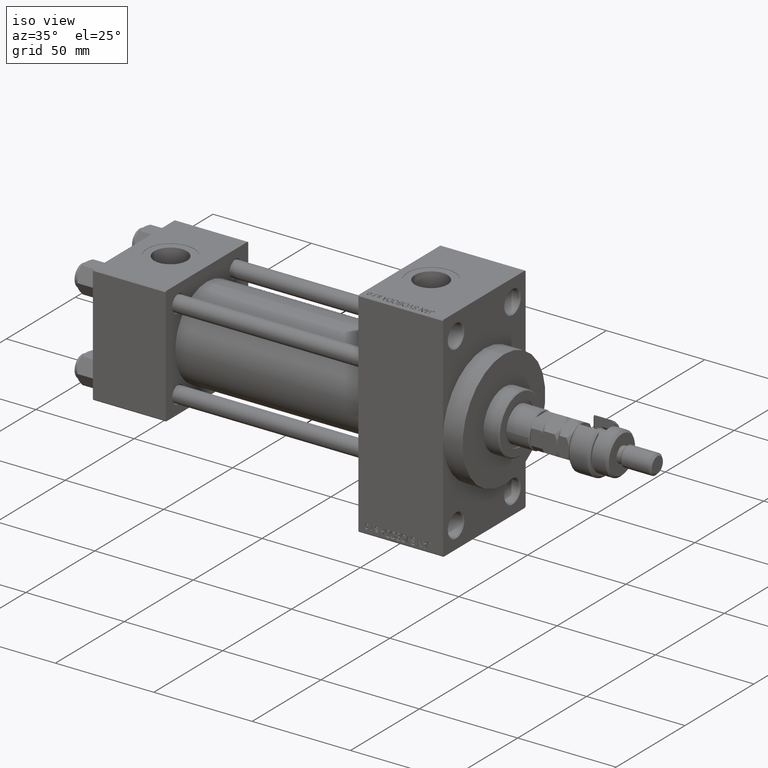
[diagram: clean part render]
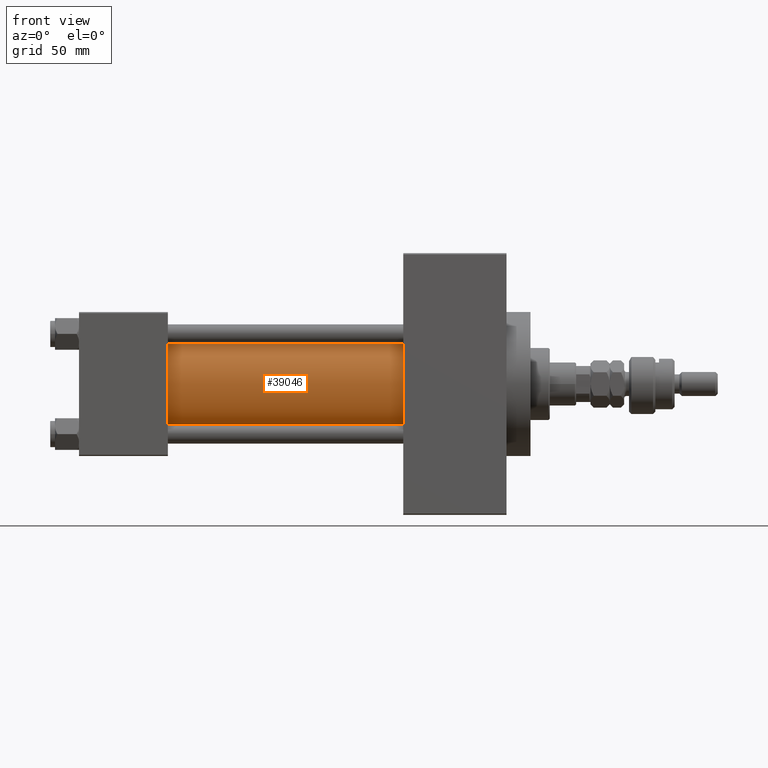
[diagram: tour spotlight — one face highlighted and labeled with its STEP entity id]
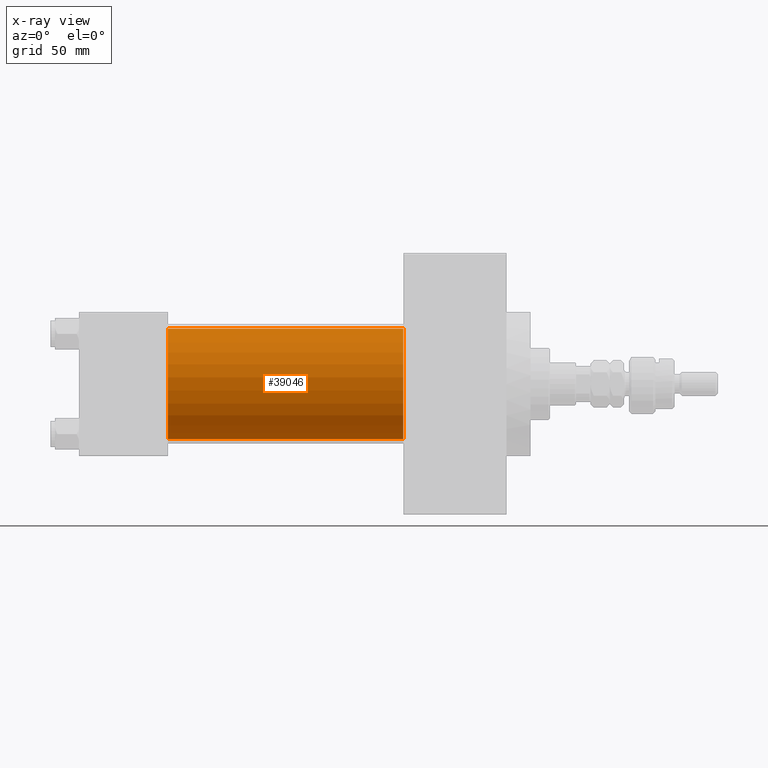
[diagram: x-ray of the same camera — body ghosted, this tour face saturated]
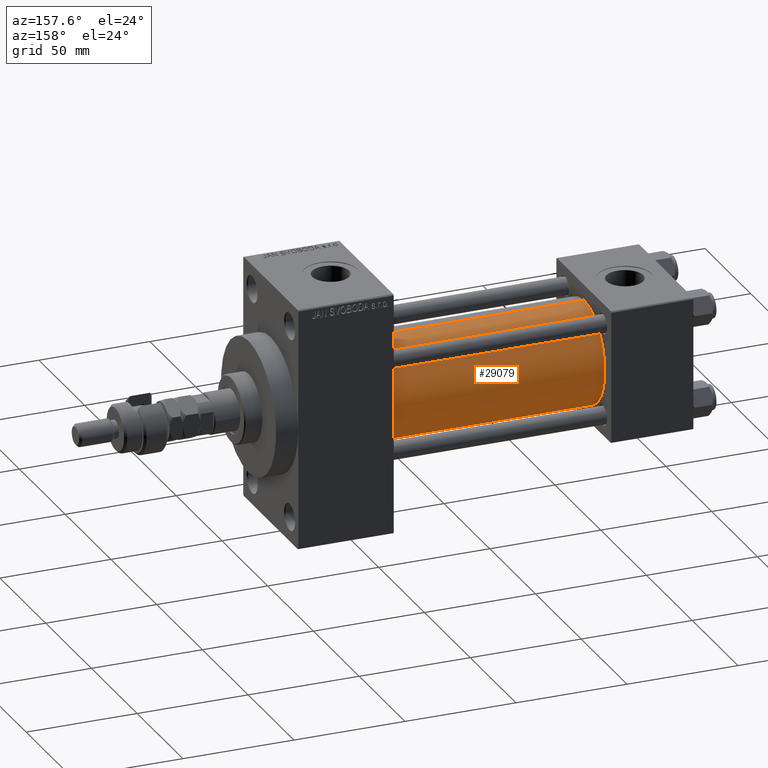
[diagram: tour spotlight — one face highlighted and labeled with its STEP entity id]
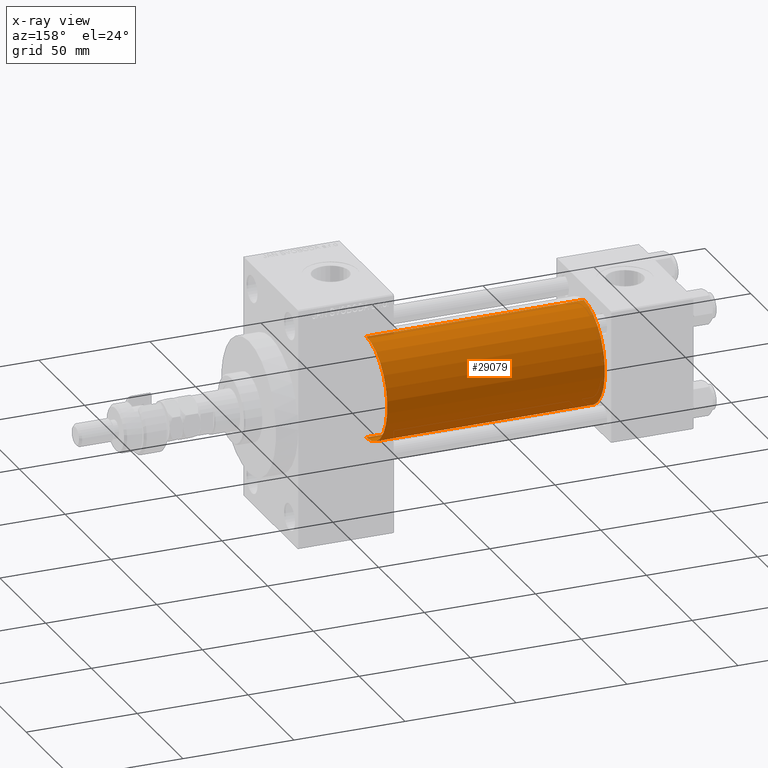
[diagram: x-ray of the same camera — body ghosted, this tour face saturated]
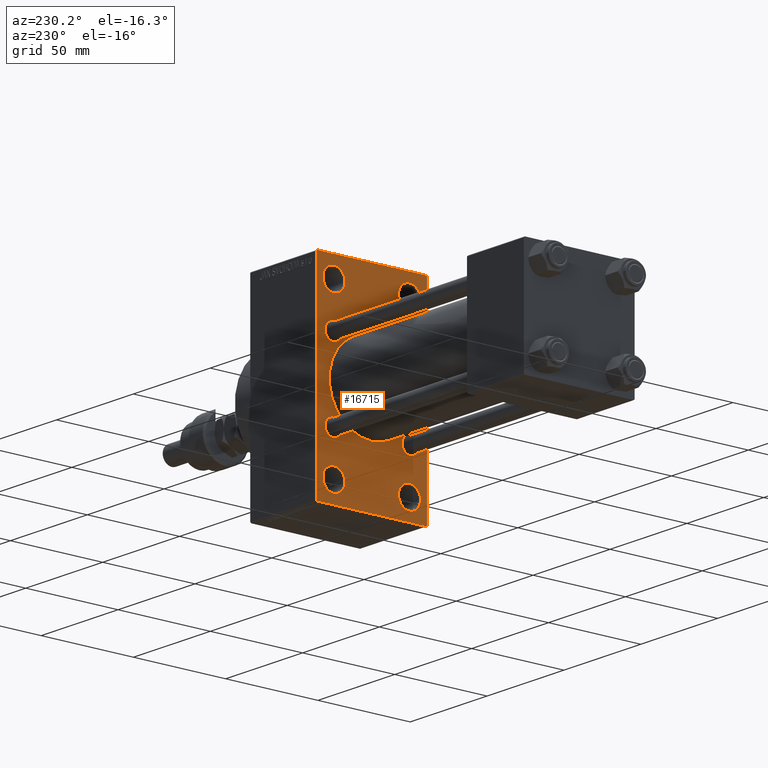
[diagram: tour spotlight — one face highlighted and labeled with its STEP entity id]
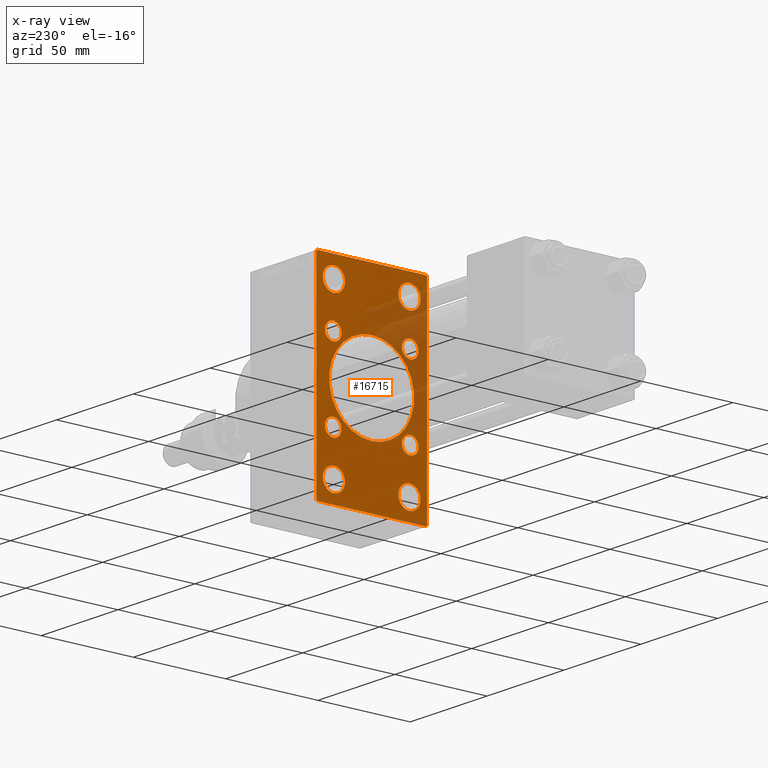
[diagram: x-ray of the same camera — body ghosted, this tour face saturated]
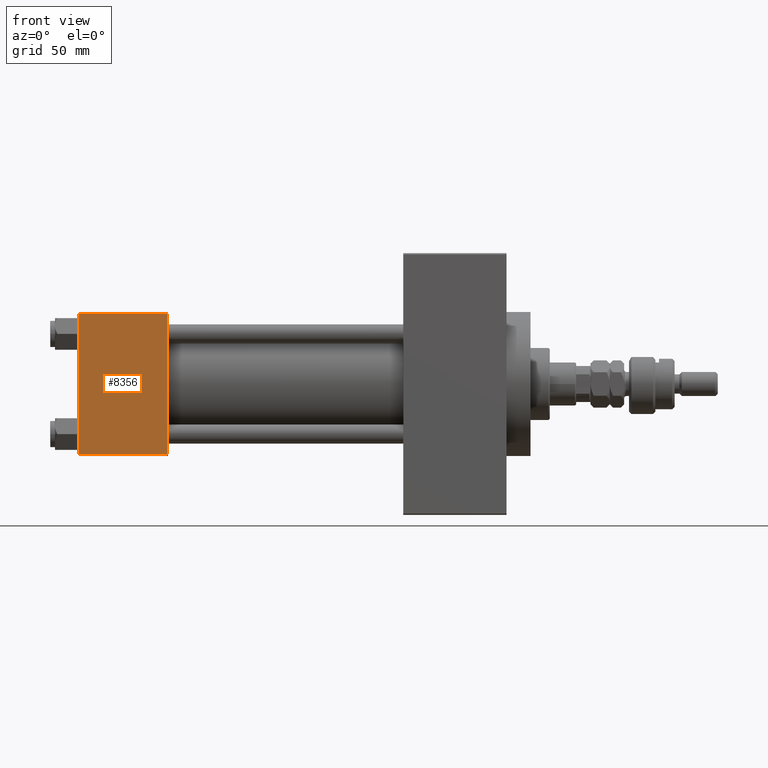
[diagram: tour spotlight — one face highlighted and labeled with its STEP entity id]
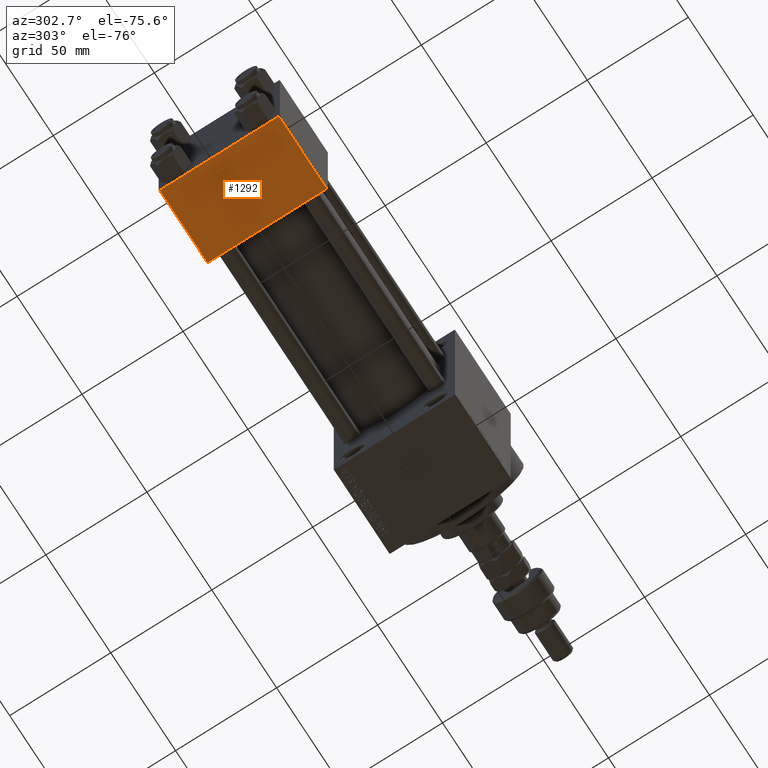
[diagram: tour spotlight — one face highlighted and labeled with its STEP entity id]
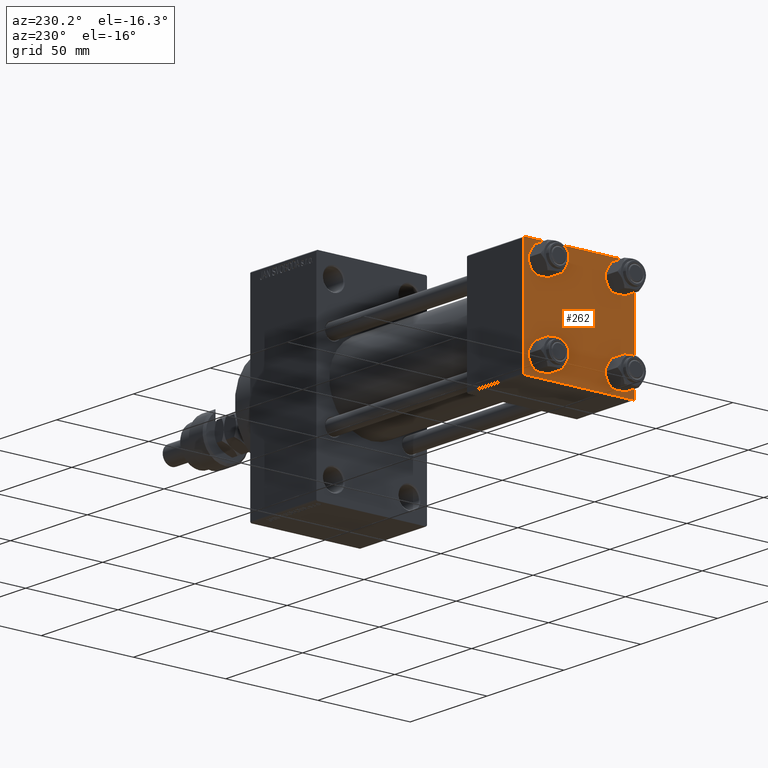
[diagram: tour spotlight — one face highlighted and labeled with its STEP entity id]
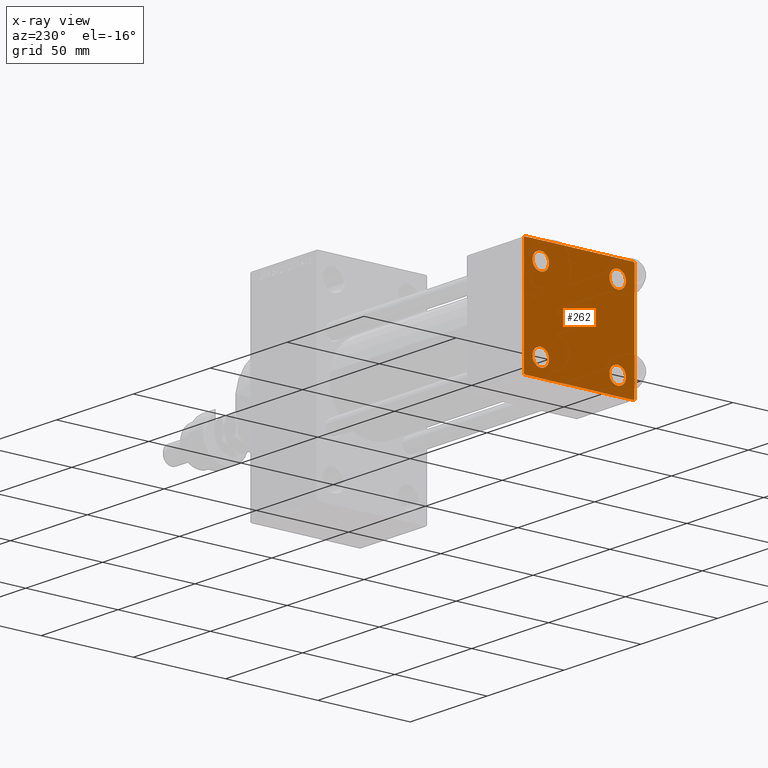
[diagram: x-ray of the same camera — body ghosted, this tour face saturated]
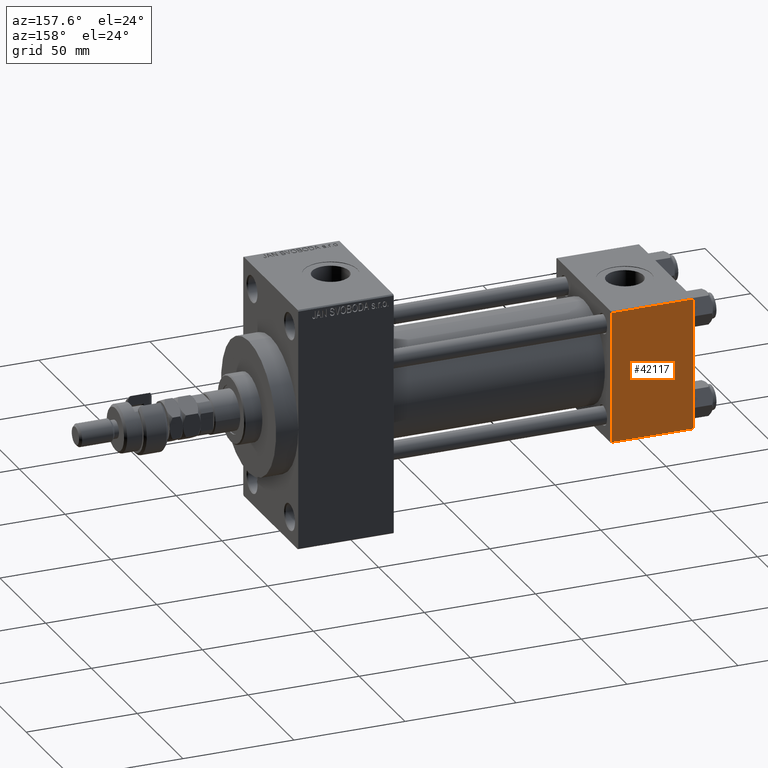
[diagram: tour spotlight — one face highlighted and labeled with its STEP entity id]
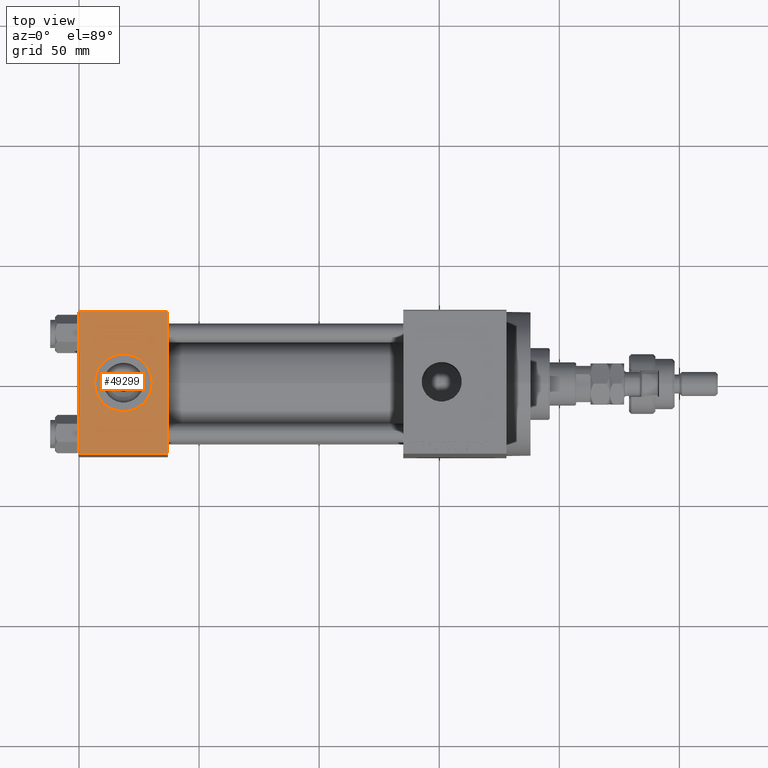
[diagram: tour spotlight — one face highlighted and labeled with its STEP entity id]
A machine part: a face-by-face anatomy tour. The part has 1189 B-rep faces; the first image is the clean iso view, then the 8 largest visible faces are spotlighted one at a time (largest first), each with its STEP entity span.

Face 1 — front view, entity #39046. An x-ray twin of the same camera follows (body ghosted, this face saturated) — the face is partly hidden behind the body. In plain terms, the highlighted cylindrical surface (partial cylindrical patch) has radius 23 mm, axis along (-1, -0, -0).
Definition (entity closure, byte-faithful):
#1125 = DIRECTION ( 'NONE',  ( -1.000000000000000000, -0.000000000000000000, -0.000000000000000000 ) ) ;
#2136 = CARTESIAN_POINT ( 'NONE',  ( 135.0000000000000000, 2.146024240737016609E-16, -23.00000000000000000 ) ) ;
#2287 = EDGE_LOOP ( 'NONE', ( #4867, #3840, #40761, #14083 ) ) ;
#3840 = ORIENTED_EDGE ( 'NONE', *, *, #43823, .F. ) ;
#4451 = VERTEX_POINT ( 'NONE', #14945 ) ;
#4867 = ORIENTED_EDGE ( 'NONE', *, *, #23606, .F. ) ;
#5389 = CARTESIAN_POINT ( 'NONE',  ( 37.00000000000000711, 2.146024240737016609E-16, -23.00000000000000000 ) ) ;
#7955 = DIRECTION ( 'NONE',  ( 0.000000000000000000, 0.000000000000000000, 1.000000000000000000 ) ) ;
#10046 = DIRECTION ( 'NONE',  ( 1.000000000000000000, -0.000000000000000000, 0.000000000000000000 ) ) ;
#10247 = DIRECTION ( 'NONE',  ( 1.000000000000000000, 0.000000000000000000, 0.000000000000000000 ) ) ;
#12777 = FACE_OUTER_BOUND ( 'NONE', #2287, .T. ) ;
#14083 = ORIENTED_EDGE ( 'NONE', *, *, #49857, .T. ) ;
#14945 = CARTESIAN_POINT ( 'NONE',  ( 135.0000000000000000, 2.146024240737016609E-16, -23.00000000000000000 ) ) ;
#15545 = DIRECTION ( 'NONE',  ( -1.000000000000000000, -0.000000000000000000, -0.000000000000000000 ) ) ;
#17026 = CIRCLE ( 'NONE', #23468, 23.00000000000000000 ) ;
#18569 = DIRECTION ( 'NONE',  ( -1.000000000000000000, -0.000000000000000000, -0.000000000000000000 ) ) ;
#20039 = CIRCLE ( 'NONE', #37822, 23.00000000000000000 ) ;
#23468 = AXIS2_PLACEMENT_3D ( 'NONE', #29222, #10247, #33266 ) ;
#23606 = EDGE_CURVE ( 'NONE', #4451, #25965, #36781, .T. ) ;
#24582 = VERTEX_POINT ( 'NONE', #41395 ) ;
#25965 = VERTEX_POINT ( 'NONE', #5389 ) ;
#29222 = CARTESIAN_POINT ( 'NONE',  ( 135.0000000000000000, -2.602085213965210642E-15, 0.000000000000000000 ) ) ;
#29234 = LINE ( 'NONE', #33763, #41300 ) ;
#30975 = CARTESIAN_POINT ( 'NONE',  ( 135.0000000000000000, -2.602085213965210642E-15, 0.000000000000000000 ) ) ;
#33266 = DIRECTION ( 'NONE',  ( 0.000000000000000000, 0.000000000000000000, -1.000000000000000000 ) ) ;
#33310 = DIRECTION ( 'NONE',  ( 0.000000000000000000, 0.000000000000000000, 1.000000000000000000 ) ) ;
#33763 = CARTESIAN_POINT ( 'NONE',  ( 135.0000000000000000, -2.602085213965210642E-15, 23.00000000000000000 ) ) ;
#36781 = LINE ( 'NONE', #2136, #47110 ) ;
#37822 = AXIS2_PLACEMENT_3D ( 'NONE', #44448, #10046, #33310 ) ;
#37829 = AXIS2_PLACEMENT_3D ( 'NONE', #30975, #1125, #7955 ) ;
#38308 = VERTEX_POINT ( 'NONE', #46094 ) ;
#39046 = ADVANCED_FACE ( 'NONE', ( #12777 ), #42612, .T. ) ;
#40761 = ORIENTED_EDGE ( 'NONE', *, *, #44863, .T. ) ;
#41300 = VECTOR ( 'NONE', #15545, 1000.000000000000000 ) ;
#41395 = CARTESIAN_POINT ( 'NONE',  ( 135.0000000000000000, -2.602085213965210642E-15, 23.00000000000000000 ) ) ;
#42612 = CYLINDRICAL_SURFACE ( 'NONE', #37829, 23.00000000000000000 ) ;
#43823 = EDGE_CURVE ( 'NONE', #24582, #4451, #17026, .T. ) ;
#44448 = CARTESIAN_POINT ( 'NONE',  ( 37.00000000000000711, -2.602085213965210642E-15, 0.000000000000000000 ) ) ;
#44863 = EDGE_CURVE ( 'NONE', #24582, #38308, #29234, .T. ) ;
#46094 = CARTESIAN_POINT ( 'NONE',  ( 37.00000000000000711, -2.602085213965210642E-15, 23.00000000000000000 ) ) ;
#47110 = VECTOR ( 'NONE', #18569, 1000.000000000000000 ) ;
#49857 = EDGE_CURVE ( 'NONE', #38308, #25965, #20039, .T. ) ;

Face 2 — auxiliary view, entity #29079. An x-ray twin of the same camera follows (body ghosted, this face saturated) — the face is partly hidden behind the body. In plain terms, the highlighted cylindrical surface (partial cylindrical patch) has radius 23 mm, axis along (-1, -0, -0).
Definition (entity closure, byte-faithful):
#745 = DIRECTION ( 'NONE',  ( 0.000000000000000000, 0.000000000000000000, 1.000000000000000000 ) ) ;
#1293 = ORIENTED_EDGE ( 'NONE', *, *, #32538, .F. ) ;
#2136 = CARTESIAN_POINT ( 'NONE',  ( 135.0000000000000000, 2.146024240737016609E-16, -23.00000000000000000 ) ) ;
#3595 = EDGE_CURVE ( 'NONE', #25965, #38308, #18506, .T. ) ;
#4451 = VERTEX_POINT ( 'NONE', #14945 ) ;
#4513 = CYLINDRICAL_SURFACE ( 'NONE', #46477, 23.00000000000000000 ) ;
#5389 = CARTESIAN_POINT ( 'NONE',  ( 37.00000000000000711, 2.146024240737016609E-16, -23.00000000000000000 ) ) ;
#8586 = DIRECTION ( 'NONE',  ( 1.000000000000000000, 0.000000000000000000, 0.000000000000000000 ) ) ;
#12572 = ORIENTED_EDGE ( 'NONE', *, *, #3595, .T. ) ;
#14945 = CARTESIAN_POINT ( 'NONE',  ( 135.0000000000000000, 2.146024240737016609E-16, -23.00000000000000000 ) ) ;
#15436 = CARTESIAN_POINT ( 'NONE',  ( 37.00000000000000711, -2.602085213965210642E-15, 0.000000000000000000 ) ) ;
#15545 = DIRECTION ( 'NONE',  ( -1.000000000000000000, -0.000000000000000000, -0.000000000000000000 ) ) ;
#16161 = DIRECTION ( 'NONE',  ( 0.000000000000000000, 0.000000000000000000, 1.000000000000000000 ) ) ;
#18506 = CIRCLE ( 'NONE', #31425, 23.00000000000000000 ) ;
#18569 = DIRECTION ( 'NONE',  ( -1.000000000000000000, -0.000000000000000000, -0.000000000000000000 ) ) ;
#19112 = ORIENTED_EDGE ( 'NONE', *, *, #23606, .T. ) ;
#23606 = EDGE_CURVE ( 'NONE', #4451, #25965, #36781, .T. ) ;
#24582 = VERTEX_POINT ( 'NONE', #41395 ) ;
#25965 = VERTEX_POINT ( 'NONE', #5389 ) ;
#29079 = ADVANCED_FACE ( 'NONE', ( #40167 ), #4513, .T. ) ;
#29234 = LINE ( 'NONE', #33763, #41300 ) ;
#31102 = DIRECTION ( 'NONE',  ( 1.000000000000000000, -0.000000000000000000, 0.000000000000000000 ) ) ;
#31425 = AXIS2_PLACEMENT_3D ( 'NONE', #15436, #31102, #745 ) ;
#31581 = DIRECTION ( 'NONE',  ( -1.000000000000000000, -0.000000000000000000, -0.000000000000000000 ) ) ;
#32538 = EDGE_CURVE ( 'NONE', #4451, #24582, #44167, .T. ) ;
#33655 = AXIS2_PLACEMENT_3D ( 'NONE', #38688, #8586, #47295 ) ;
#33763 = CARTESIAN_POINT ( 'NONE',  ( 135.0000000000000000, -2.602085213965210642E-15, 23.00000000000000000 ) ) ;
#36781 = LINE ( 'NONE', #2136, #47110 ) ;
#38308 = VERTEX_POINT ( 'NONE', #46094 ) ;
#38688 = CARTESIAN_POINT ( 'NONE',  ( 135.0000000000000000, -2.602085213965210642E-15, 0.000000000000000000 ) ) ;
#40167 = FACE_OUTER_BOUND ( 'NONE', #43232, .T. ) ;
#41300 = VECTOR ( 'NONE', #15545, 1000.000000000000000 ) ;
#41395 = CARTESIAN_POINT ( 'NONE',  ( 135.0000000000000000, -2.602085213965210642E-15, 23.00000000000000000 ) ) ;
#43232 = EDGE_LOOP ( 'NONE', ( #1293, #19112, #12572, #43582 ) ) ;
#43582 = ORIENTED_EDGE ( 'NONE', *, *, #44863, .F. ) ;
#43965 = CARTESIAN_POINT ( 'NONE',  ( 135.0000000000000000, -2.602085213965210642E-15, 0.000000000000000000 ) ) ;
#44167 = CIRCLE ( 'NONE', #33655, 23.00000000000000000 ) ;
#44863 = EDGE_CURVE ( 'NONE', #24582, #38308, #29234, .T. ) ;
#46094 = CARTESIAN_POINT ( 'NONE',  ( 37.00000000000000711, -2.602085213965210642E-15, 23.00000000000000000 ) ) ;
#46477 = AXIS2_PLACEMENT_3D ( 'NONE', #43965, #31581, #16161 ) ;
#47110 = VECTOR ( 'NONE', #18569, 1000.000000000000000 ) ;
#47295 = DIRECTION ( 'NONE',  ( 0.000000000000000000, 0.000000000000000000, -1.000000000000000000 ) ) ;

Face 3 — auxiliary view, entity #16715. An x-ray twin of the same camera follows (body ghosted, this face saturated) — the face is partly hidden behind the body. In plain terms, the highlighted planar face has unit normal (-1, 0, 0).
Definition (entity closure, byte-faithful):
#497 = VERTEX_POINT ( 'NONE', #25532 ) ;
#645 = EDGE_LOOP ( 'NONE', ( #31082, #6238 ) ) ;
#822 = CARTESIAN_POINT ( 'NONE',  ( 135.0000000000000000, 20.84999999999999787, -20.85000000000000142 ) ) ;
#951 = ORIENTED_EDGE ( 'NONE', *, *, #5406, .F. ) ;
#1064 = FACE_BOUND ( 'NONE', #32664, .T. ) ;
#1391 = CARTESIAN_POINT ( 'NONE',  ( 135.0000000000000000, -20.50000000000000000, -43.50000000000000000 ) ) ;
#1442 = LINE ( 'NONE', #40875, #10981 ) ;
#1576 = VERTEX_POINT ( 'NONE', #4515 ) ;
#1593 = EDGE_CURVE ( 'NONE', #6086, #48420, #23493, .T. ) ;
#2179 = EDGE_CURVE ( 'NONE', #35141, #22191, #24104, .T. ) ;
#2764 = EDGE_CURVE ( 'NONE', #1576, #48928, #37056, .T. ) ;
#2961 = AXIS2_PLACEMENT_3D ( 'NONE', #4413, #36262, #12269 ) ;
#3867 = CARTESIAN_POINT ( 'NONE',  ( 135.0000000000000000, 29.99999999999999645, 54.49999999999999289 ) ) ;
#4085 = VERTEX_POINT ( 'NONE', #10719 ) ;
#4279 = CARTESIAN_POINT ( 'NONE',  ( 135.0000000000000000, -20.84999999999999076, -16.34999999999999787 ) ) ;
#4413 = CARTESIAN_POINT ( 'NONE',  ( 135.0000000000000000, 20.50000000000000000, 43.50000000000000000 ) ) ;
#4451 = VERTEX_POINT ( 'NONE', #14945 ) ;
#4515 = CARTESIAN_POINT ( 'NONE',  ( 135.0000000000000000, 20.50000000000000000, -49.50000000000000000 ) ) ;
#4950 = EDGE_CURVE ( 'NONE', #31722, #45522, #49419, .T. ) ;
#5113 = DIRECTION ( 'NONE',  ( -1.000000000000000000, 0.000000000000000000, -0.000000000000000000 ) ) ;
#5181 = VERTEX_POINT ( 'NONE', #17512 ) ;
#5406 = EDGE_CURVE ( 'NONE', #7410, #45530, #23286, .T. ) ;
#5601 = FACE_BOUND ( 'NONE', #31151, .T. ) ;
#5659 = CARTESIAN_POINT ( 'NONE',  ( 135.0000000000000000, 29.99999999999999645, 53.99999999999999289 ) ) ;
#6086 = VERTEX_POINT ( 'NONE', #20070 ) ;
#6144 = VERTEX_POINT ( 'NONE', #13235 ) ;
#6208 = CIRCLE ( 'NONE', #2961, 6.000000000000005329 ) ;
#6238 = ORIENTED_EDGE ( 'NONE', *, *, #9630, .T. ) ;
#6428 = DIRECTION ( 'NONE',  ( 0.000000000000000000, 0.000000000000000000, 1.000000000000000000 ) ) ;
#6736 = CARTESIAN_POINT ( 'NONE',  ( 135.0000000000000000, 20.84999999999999787, 25.35000000000000853 ) ) ;
#7088 = CARTESIAN_POINT ( 'NONE',  ( 135.0000000000000000, -20.50000000000000000, 43.50000000000000000 ) ) ;
#7157 = EDGE_CURVE ( 'NONE', #9086, #35176, #7295, .T. ) ;
#7164 = DIRECTION ( 'NONE',  ( 1.000000000000000000, -0.000000000000000000, 0.000000000000000000 ) ) ;
#7295 = CIRCLE ( 'NONE', #8105, 4.500000000000007105 ) ;
#7315 = DIRECTION ( 'NONE',  ( -0.000000000000000000, -0.7071067811865474617, -0.7071067811865474617 ) ) ;
#7410 = VERTEX_POINT ( 'NONE', #22168 ) ;
#7469 = VECTOR ( 'NONE', #7315, 1000.000000000000114 ) ;
#7771 = EDGE_LOOP ( 'NONE', ( #42211, #21530 ) ) ;
#7828 = CIRCLE ( 'NONE', #46612, 4.500000000000007105 ) ;
#8015 = ORIENTED_EDGE ( 'NONE', *, *, #2764, .T. ) ;
#8105 = AXIS2_PLACEMENT_3D ( 'NONE', #43097, #31452, #22868 ) ;
#8586 = DIRECTION ( 'NONE',  ( 1.000000000000000000, 0.000000000000000000, 0.000000000000000000 ) ) ;
#9086 = VERTEX_POINT ( 'NONE', #39830 ) ;
#9630 = EDGE_CURVE ( 'NONE', #45856, #26211, #25944, .T. ) ;
#9633 = CARTESIAN_POINT ( 'NONE',  ( 135.0000000000000000, -29.49999999999994671, 54.50000000000000000 ) ) ;
#9650 = FACE_BOUND ( 'NONE', #645, .T. ) ;
#9727 = EDGE_CURVE ( 'NONE', #18680, #30101, #23525, .T. ) ;
#9796 = CARTESIAN_POINT ( 'NONE',  ( 135.0000000000000000, -20.50000000000000000, 49.50000000000000000 ) ) ;
#9943 = ORIENTED_EDGE ( 'NONE', *, *, #4950, .T. ) ;
#10160 = ORIENTED_EDGE ( 'NONE', *, *, #32021, .T. ) ;
#10247 = DIRECTION ( 'NONE',  ( 1.000000000000000000, 0.000000000000000000, 0.000000000000000000 ) ) ;
#10616 = DIRECTION ( 'NONE',  ( 1.000000000000000000, -0.000000000000000000, 0.000000000000000000 ) ) ;
#10719 = CARTESIAN_POINT ( 'NONE',  ( 135.0000000000000000, 20.50000000000000000, 37.49999999999999289 ) ) ;
#10981 = VECTOR ( 'NONE', #13582, 1000.000000000000000 ) ;
#11900 = DIRECTION ( 'NONE',  ( 1.000000000000000000, -0.000000000000000000, 0.000000000000000000 ) ) ;
#11965 = DIRECTION ( 'NONE',  ( 1.000000000000000000, -0.000000000000000000, 0.000000000000000000 ) ) ;
#12004 = DIRECTION ( 'NONE',  ( 1.000000000000000000, -0.000000000000000000, 0.000000000000000000 ) ) ;
#12269 = DIRECTION ( 'NONE',  ( 0.000000000000000000, 0.000000000000000000, 1.000000000000000000 ) ) ;
#12559 = ORIENTED_EDGE ( 'NONE', *, *, #43481, .F. ) ;
#12687 = DIRECTION ( 'NONE',  ( 0.000000000000000000, 0.7071067811865474617, -0.7071067811865474617 ) ) ;
#12715 = CARTESIAN_POINT ( 'NONE',  ( 135.0000000000000000, 0.000000000000000000, 0.000000000000000000 ) ) ;
#13102 = CARTESIAN_POINT ( 'NONE',  ( 135.0000000000000000, -20.84999999999999076, 16.34999999999999787 ) ) ;
#13168 = AXIS2_PLACEMENT_3D ( 'NONE', #48334, #47852, #13198 ) ;
#13198 = DIRECTION ( 'NONE',  ( 0.000000000000000000, 0.000000000000000000, 1.000000000000000000 ) ) ;
#13235 = CARTESIAN_POINT ( 'NONE',  ( 135.0000000000000000, -20.50000000000000000, -49.50000000000000000 ) ) ;
#13259 = DIRECTION ( 'NONE',  ( 0.000000000000000000, 0.000000000000000000, 1.000000000000000000 ) ) ;
#13582 = DIRECTION ( 'NONE',  ( 0.000000000000000000, -0.7071067811865352493, 0.7071067811865597852 ) ) ;
#13588 = CARTESIAN_POINT ( 'NONE',  ( 135.0000000000000000, 20.84999999999999787, -16.34999999999999432 ) ) ;
#13766 = CIRCLE ( 'NONE', #25061, 6.000000000000005329 ) ;
#14411 = EDGE_LOOP ( 'NONE', ( #44372, #42581, #12559, #33152, #951, #14873, #9943, #31043 ) ) ;
#14873 = ORIENTED_EDGE ( 'NONE', *, *, #48709, .T. ) ;
#14945 = CARTESIAN_POINT ( 'NONE',  ( 135.0000000000000000, 2.146024240737016609E-16, -23.00000000000000000 ) ) ;
#15166 = EDGE_CURVE ( 'NONE', #45522, #6086, #45023, .T. ) ;
#16510 = FACE_BOUND ( 'NONE', #7771, .T. ) ;
#16621 = DIRECTION ( 'NONE',  ( 1.000000000000000000, -0.000000000000000000, 0.000000000000000000 ) ) ;
#16715 = ADVANCED_FACE ( 'NONE', ( #9650, #5601, #24834, #1064, #40258, #27886, #16510, #20045, #24345, #31917 ), #39769, .T. ) ;
#16756 = DIRECTION ( 'NONE',  ( -0.000000000000000000, 0.000000000000000000, 1.000000000000000000 ) ) ;
#16934 = VERTEX_POINT ( 'NONE', #19495 ) ;
#16982 = LINE ( 'NONE', #17470, #27398 ) ;
#17026 = CIRCLE ( 'NONE', #23468, 23.00000000000000000 ) ;
#17295 = EDGE_LOOP ( 'NONE', ( #49398, #32165 ) ) ;
#17470 = CARTESIAN_POINT ( 'NONE',  ( 135.0000000000000000, 41.99999999999998579, 41.99999999999998579 ) ) ;
#17512 = CARTESIAN_POINT ( 'NONE',  ( 135.0000000000000000, 20.84999999999999787, 16.34999999999999432 ) ) ;
#17513 = DIRECTION ( 'NONE',  ( 1.000000000000000000, -0.000000000000000000, 0.000000000000000000 ) ) ;
#17605 = CARTESIAN_POINT ( 'NONE',  ( 135.0000000000000000, -20.50000000000000000, 37.49999999999999289 ) ) ;
#18041 = CIRCLE ( 'NONE', #47934, 4.500000000000007105 ) ;
#18581 = ORIENTED_EDGE ( 'NONE', *, *, #47266, .T. ) ;
#18601 = CARTESIAN_POINT ( 'NONE',  ( 135.0000000000000000, 20.84999999999999787, -25.35000000000000853 ) ) ;
#18680 = VERTEX_POINT ( 'NONE', #44307 ) ;
#19313 = DIRECTION ( 'NONE',  ( 0.000000000000000000, 0.000000000000000000, -1.000000000000000000 ) ) ;
#19468 = CARTESIAN_POINT ( 'NONE',  ( 135.0000000000000000, 20.50000000000000000, -37.49999999999999289 ) ) ;
#19495 = CARTESIAN_POINT ( 'NONE',  ( 135.0000000000000000, -20.50000000000000000, -37.49999999999999289 ) ) ;
#19955 = DIRECTION ( 'NONE',  ( 0.000000000000000000, -1.000000000000000000, -1.156482317317871478E-16 ) ) ;
#20024 = DIRECTION ( 'NONE',  ( 1.000000000000000000, -0.000000000000000000, 0.000000000000000000 ) ) ;
#20045 = FACE_BOUND ( 'NONE', #17295, .T. ) ;
#20070 = CARTESIAN_POINT ( 'NONE',  ( 135.0000000000000000, 29.49999999999996803, -54.49999999999999289 ) ) ;
#20096 = CARTESIAN_POINT ( 'NONE',  ( 135.0000000000000000, 20.84999999999999787, -20.85000000000000142 ) ) ;
#20197 = CIRCLE ( 'NONE', #42778, 6.000000000000005329 ) ;
#21064 = CIRCLE ( 'NONE', #46059, 6.000000000000005329 ) ;
#21530 = ORIENTED_EDGE ( 'NONE', *, *, #34797, .T. ) ;
#21711 = VECTOR ( 'NONE', #43873, 1000.000000000000114 ) ;
#21782 = EDGE_CURVE ( 'NONE', #30101, #18680, #29262, .T. ) ;
#22024 = ORIENTED_EDGE ( 'NONE', *, *, #7157, .T. ) ;
#22168 = CARTESIAN_POINT ( 'NONE',  ( 135.0000000000000000, 29.49999999999999645, 54.49999999999999289 ) ) ;
#22191 = VERTEX_POINT ( 'NONE', #18601 ) ;
#22408 = ORIENTED_EDGE ( 'NONE', *, *, #23432, .T. ) ;
#22562 = EDGE_LOOP ( 'NONE', ( #22024, #24076 ) ) ;
#22807 = EDGE_CURVE ( 'NONE', #5181, #26092, #46260, .T. ) ;
#22868 = DIRECTION ( 'NONE',  ( 0.000000000000000000, 0.000000000000000000, 1.000000000000000000 ) ) ;
#23143 = CIRCLE ( 'NONE', #35275, 4.500000000000007105 ) ;
#23270 = AXIS2_PLACEMENT_3D ( 'NONE', #20096, #12004, #27433 ) ;
#23286 = LINE ( 'NONE', #38715, #37123 ) ;
#23432 = EDGE_CURVE ( 'NONE', #6144, #16934, #33342, .T. ) ;
#23468 = AXIS2_PLACEMENT_3D ( 'NONE', #29222, #10247, #33266 ) ;
#23493 = LINE ( 'NONE', #38410, #32986 ) ;
#23525 = CIRCLE ( 'NONE', #45217, 4.500000000000007105 ) ;
#23653 = EDGE_LOOP ( 'NONE', ( #34243, #29252 ) ) ;
#23813 = EDGE_CURVE ( 'NONE', #35176, #9086, #18041, .T. ) ;
#24076 = ORIENTED_EDGE ( 'NONE', *, *, #23813, .T. ) ;
#24104 = CIRCLE ( 'NONE', #23270, 4.500000000000007105 ) ;
#24345 = FACE_BOUND ( 'NONE', #38029, .T. ) ;
#24472 = AXIS2_PLACEMENT_3D ( 'NONE', #1391, #43639, #38850 ) ;
#24582 = VERTEX_POINT ( 'NONE', #41395 ) ;
#24604 = CARTESIAN_POINT ( 'NONE',  ( 135.0000000000000000, -20.84999999999999076, 20.85000000000000497 ) ) ;
#24834 = FACE_BOUND ( 'NONE', #31683, .T. ) ;
#25061 = AXIS2_PLACEMENT_3D ( 'NONE', #43419, #46977, #32285 ) ;
#25532 = CARTESIAN_POINT ( 'NONE',  ( 135.0000000000000000, 20.50000000000000000, 49.50000000000000000 ) ) ;
#25596 = DIRECTION ( 'NONE',  ( 0.000000000000000000, 0.000000000000000000, 1.000000000000000000 ) ) ;
#25944 = CIRCLE ( 'NONE', #27580, 6.000000000000005329 ) ;
#26092 = VERTEX_POINT ( 'NONE', #6736 ) ;
#26211 = VERTEX_POINT ( 'NONE', #9796 ) ;
#26544 = AXIS2_PLACEMENT_3D ( 'NONE', #43682, #16621, #32035 ) ;
#27398 = VECTOR ( 'NONE', #12687, 1000.000000000000114 ) ;
#27433 = DIRECTION ( 'NONE',  ( 0.000000000000000000, 0.000000000000000000, 1.000000000000000000 ) ) ;
#27580 = AXIS2_PLACEMENT_3D ( 'NONE', #7088, #29874, #49593 ) ;
#27886 = FACE_BOUND ( 'NONE', #23653, .T. ) ;
#27933 = DIRECTION ( 'NONE',  ( 1.000000000000000000, -0.000000000000000000, 0.000000000000000000 ) ) ;
#27953 = LINE ( 'NONE', #32985, #21711 ) ;
#28315 = VECTOR ( 'NONE', #39061, 1000.000000000000000 ) ;
#29124 = VERTEX_POINT ( 'NONE', #35630 ) ;
#29222 = CARTESIAN_POINT ( 'NONE',  ( 135.0000000000000000, -2.602085213965210642E-15, 0.000000000000000000 ) ) ;
#29252 = ORIENTED_EDGE ( 'NONE', *, *, #22807, .T. ) ;
#29262 = CIRCLE ( 'NONE', #36522, 4.500000000000007105 ) ;
#29838 = VECTOR ( 'NONE', #19313, 1000.000000000000000 ) ;
#29874 = DIRECTION ( 'NONE',  ( 1.000000000000000000, -0.000000000000000000, 0.000000000000000000 ) ) ;
#30101 = VERTEX_POINT ( 'NONE', #4279 ) ;
#30861 = DIRECTION ( 'NONE',  ( 0.000000000000000000, 0.000000000000000000, 1.000000000000000000 ) ) ;
#31043 = ORIENTED_EDGE ( 'NONE', *, *, #15166, .T. ) ;
#31082 = ORIENTED_EDGE ( 'NONE', *, *, #45754, .T. ) ;
#31151 = EDGE_LOOP ( 'NONE', ( #48818, #22408 ) ) ;
#31233 = AXIS2_PLACEMENT_3D ( 'NONE', #43360, #27933, #13259 ) ;
#31393 = CARTESIAN_POINT ( 'NONE',  ( 135.0000000000000000, -20.84999999999999076, -20.85000000000000497 ) ) ;
#31452 = DIRECTION ( 'NONE',  ( 1.000000000000000000, -0.000000000000000000, 0.000000000000000000 ) ) ;
#31683 = EDGE_LOOP ( 'NONE', ( #33904, #8015 ) ) ;
#31722 = VERTEX_POINT ( 'NONE', #5659 ) ;
#31859 = DIRECTION ( 'NONE',  ( 0.000000000000000000, 0.000000000000000000, 1.000000000000000000 ) ) ;
#31917 = FACE_OUTER_BOUND ( 'NONE', #14411, .T. ) ;
#32021 = EDGE_CURVE ( 'NONE', #497, #4085, #6208, .T. ) ;
#32026 = EDGE_CURVE ( 'NONE', #48928, #1576, #40909, .T. ) ;
#32035 = DIRECTION ( 'NONE',  ( 0.000000000000000000, 0.000000000000000000, 1.000000000000000000 ) ) ;
#32165 = ORIENTED_EDGE ( 'NONE', *, *, #9727, .T. ) ;
#32285 = DIRECTION ( 'NONE',  ( 0.000000000000000000, 0.000000000000000000, 1.000000000000000000 ) ) ;
#32538 = EDGE_CURVE ( 'NONE', #4451, #24582, #44167, .T. ) ;
#32664 = EDGE_LOOP ( 'NONE', ( #10160, #18581 ) ) ;
#32985 = CARTESIAN_POINT ( 'NONE',  ( 135.0000000000000000, -42.00000000000007105, 41.99999999999977973 ) ) ;
#32986 = VECTOR ( 'NONE', #19955, 1000.000000000000000 ) ;
#33044 = VERTEX_POINT ( 'NONE', #39143 ) ;
#33152 = ORIENTED_EDGE ( 'NONE', *, *, #39978, .T. ) ;
#33266 = DIRECTION ( 'NONE',  ( 0.000000000000000000, 0.000000000000000000, -1.000000000000000000 ) ) ;
#33342 = CIRCLE ( 'NONE', #24472, 6.000000000000005329 ) ;
#33638 = EDGE_CURVE ( 'NONE', #26092, #5181, #7828, .T. ) ;
#33655 = AXIS2_PLACEMENT_3D ( 'NONE', #38688, #8586, #47295 ) ;
#33885 = CARTESIAN_POINT ( 'NONE',  ( 135.0000000000000000, 41.99999999999997158, -41.99999999999997158 ) ) ;
#33904 = ORIENTED_EDGE ( 'NONE', *, *, #32026, .T. ) ;
#34072 = EDGE_CURVE ( 'NONE', #48420, #33044, #1442, .T. ) ;
#34243 = ORIENTED_EDGE ( 'NONE', *, *, #33638, .T. ) ;
#34797 = EDGE_CURVE ( 'NONE', #22191, #35141, #23143, .T. ) ;
#34923 = DIRECTION ( 'NONE',  ( 0.000000000000000000, -1.000000000000000000, 1.156482317317871478E-16 ) ) ;
#34956 = AXIS2_PLACEMENT_3D ( 'NONE', #12715, #5113, #16756 ) ;
#35004 = LINE ( 'NONE', #38809, #28315 ) ;
#35141 = VERTEX_POINT ( 'NONE', #13588 ) ;
#35151 = ORIENTED_EDGE ( 'NONE', *, *, #43823, .T. ) ;
#35176 = VERTEX_POINT ( 'NONE', #13102 ) ;
#35275 = AXIS2_PLACEMENT_3D ( 'NONE', #822, #11965, #47122 ) ;
#35630 = CARTESIAN_POINT ( 'NONE',  ( 135.0000000000000000, -30.00000000000000000, 53.99999999999994316 ) ) ;
#35670 = CARTESIAN_POINT ( 'NONE',  ( 135.0000000000000000, -20.84999999999999076, -20.85000000000000497 ) ) ;
#36262 = DIRECTION ( 'NONE',  ( 1.000000000000000000, -0.000000000000000000, 0.000000000000000000 ) ) ;
#36522 = AXIS2_PLACEMENT_3D ( 'NONE', #31393, #20024, #39246 ) ;
#37056 = CIRCLE ( 'NONE', #26544, 6.000000000000005329 ) ;
#37123 = VECTOR ( 'NONE', #34923, 1000.000000000000000 ) ;
#37410 = DIRECTION ( 'NONE',  ( 0.000000000000000000, 0.000000000000000000, 1.000000000000000000 ) ) ;
#37950 = DIRECTION ( 'NONE',  ( 1.000000000000000000, -0.000000000000000000, 0.000000000000000000 ) ) ;
#38029 = EDGE_LOOP ( 'NONE', ( #35151, #40888 ) ) ;
#38410 = CARTESIAN_POINT ( 'NONE',  ( 135.0000000000000000, 29.99999999999999645, -54.49999999999999289 ) ) ;
#38688 = CARTESIAN_POINT ( 'NONE',  ( 135.0000000000000000, -2.602085213965210642E-15, 0.000000000000000000 ) ) ;
#38715 = CARTESIAN_POINT ( 'NONE',  ( 135.0000000000000000, 29.99999999999999645, 54.49999999999999289 ) ) ;
#38809 = CARTESIAN_POINT ( 'NONE',  ( 135.0000000000000000, -30.00000000000000000, 54.50000000000000000 ) ) ;
#38850 = DIRECTION ( 'NONE',  ( 0.000000000000000000, 0.000000000000000000, 1.000000000000000000 ) ) ;
#39061 = DIRECTION ( 'NONE',  ( 0.000000000000000000, 0.000000000000000000, -1.000000000000000000 ) ) ;
#39143 = CARTESIAN_POINT ( 'NONE',  ( 135.0000000000000000, -30.00000000000000000, -53.99999999999998579 ) ) ;
#39246 = DIRECTION ( 'NONE',  ( 0.000000000000000000, 0.000000000000000000, 1.000000000000000000 ) ) ;
#39769 = PLANE ( 'NONE',  #34956 ) ;
#39798 = CARTESIAN_POINT ( 'NONE',  ( 135.0000000000000000, -29.50000000000000355, -54.50000000000000000 ) ) ;
#39830 = CARTESIAN_POINT ( 'NONE',  ( 135.0000000000000000, -20.84999999999999076, 25.35000000000001208 ) ) ;
#39978 = EDGE_CURVE ( 'NONE', #29124, #45530, #27953, .T. ) ;
#40242 = CARTESIAN_POINT ( 'NONE',  ( 135.0000000000000000, 29.99999999999999645, -53.99999999999996447 ) ) ;
#40258 = FACE_BOUND ( 'NONE', #22562, .T. ) ;
#40875 = CARTESIAN_POINT ( 'NONE',  ( 135.0000000000000000, -42.00000000000051159, -41.99999999999905498 ) ) ;
#40888 = ORIENTED_EDGE ( 'NONE', *, *, #32538, .T. ) ;
#40909 = CIRCLE ( 'NONE', #31233, 6.000000000000005329 ) ;
#41395 = CARTESIAN_POINT ( 'NONE',  ( 135.0000000000000000, -2.602085213965210642E-15, 23.00000000000000000 ) ) ;
#42007 = EDGE_CURVE ( 'NONE', #16934, #6144, #20197, .T. ) ;
#42211 = ORIENTED_EDGE ( 'NONE', *, *, #2179, .T. ) ;
#42581 = ORIENTED_EDGE ( 'NONE', *, *, #34072, .T. ) ;
#42778 = AXIS2_PLACEMENT_3D ( 'NONE', #49049, #10616, #37410 ) ;
#43097 = CARTESIAN_POINT ( 'NONE',  ( 135.0000000000000000, -20.84999999999999076, 20.85000000000000497 ) ) ;
#43360 = CARTESIAN_POINT ( 'NONE',  ( 135.0000000000000000, 20.50000000000000000, -43.50000000000000000 ) ) ;
#43419 = CARTESIAN_POINT ( 'NONE',  ( 135.0000000000000000, -20.50000000000000000, 43.50000000000000000 ) ) ;
#43481 = EDGE_CURVE ( 'NONE', #29124, #33044, #35004, .T. ) ;
#43639 = DIRECTION ( 'NONE',  ( 1.000000000000000000, -0.000000000000000000, 0.000000000000000000 ) ) ;
#43682 = CARTESIAN_POINT ( 'NONE',  ( 135.0000000000000000, 20.50000000000000000, -43.50000000000000000 ) ) ;
#43823 = EDGE_CURVE ( 'NONE', #24582, #4451, #17026, .T. ) ;
#43873 = DIRECTION ( 'NONE',  ( -0.000000000000000000, 0.7071067811865451302, 0.7071067811865500152 ) ) ;
#44167 = CIRCLE ( 'NONE', #33655, 23.00000000000000000 ) ;
#44307 = CARTESIAN_POINT ( 'NONE',  ( 135.0000000000000000, -20.84999999999999076, -25.35000000000001208 ) ) ;
#44372 = ORIENTED_EDGE ( 'NONE', *, *, #1593, .T. ) ;
#44385 = CARTESIAN_POINT ( 'NONE',  ( 135.0000000000000000, 20.50000000000000000, 43.50000000000000000 ) ) ;
#45023 = LINE ( 'NONE', #33885, #7469 ) ;
#45217 = AXIS2_PLACEMENT_3D ( 'NONE', #35670, #11900, #30861 ) ;
#45522 = VERTEX_POINT ( 'NONE', #40242 ) ;
#45530 = VERTEX_POINT ( 'NONE', #9633 ) ;
#45754 = EDGE_CURVE ( 'NONE', #26211, #45856, #13766, .T. ) ;
#45856 = VERTEX_POINT ( 'NONE', #17605 ) ;
#46034 = CARTESIAN_POINT ( 'NONE',  ( 135.0000000000000000, 20.84999999999999787, 20.85000000000000142 ) ) ;
#46059 = AXIS2_PLACEMENT_3D ( 'NONE', #44385, #7164, #6428 ) ;
#46260 = CIRCLE ( 'NONE', #13168, 4.500000000000007105 ) ;
#46612 = AXIS2_PLACEMENT_3D ( 'NONE', #46034, #37950, #31859 ) ;
#46977 = DIRECTION ( 'NONE',  ( 1.000000000000000000, -0.000000000000000000, 0.000000000000000000 ) ) ;
#47122 = DIRECTION ( 'NONE',  ( 0.000000000000000000, 0.000000000000000000, 1.000000000000000000 ) ) ;
#47266 = EDGE_CURVE ( 'NONE', #4085, #497, #21064, .T. ) ;
#47295 = DIRECTION ( 'NONE',  ( 0.000000000000000000, 0.000000000000000000, -1.000000000000000000 ) ) ;
#47852 = DIRECTION ( 'NONE',  ( 1.000000000000000000, -0.000000000000000000, 0.000000000000000000 ) ) ;
#47934 = AXIS2_PLACEMENT_3D ( 'NONE', #24604, #17513, #25596 ) ;
#48334 = CARTESIAN_POINT ( 'NONE',  ( 135.0000000000000000, 20.84999999999999787, 20.85000000000000142 ) ) ;
#48420 = VERTEX_POINT ( 'NONE', #39798 ) ;
#48709 = EDGE_CURVE ( 'NONE', #7410, #31722, #16982, .T. ) ;
#48818 = ORIENTED_EDGE ( 'NONE', *, *, #42007, .T. ) ;
#48928 = VERTEX_POINT ( 'NONE', #19468 ) ;
#49049 = CARTESIAN_POINT ( 'NONE',  ( 135.0000000000000000, -20.50000000000000000, -43.50000000000000000 ) ) ;
#49398 = ORIENTED_EDGE ( 'NONE', *, *, #21782, .T. ) ;
#49419 = LINE ( 'NONE', #3867, #29838 ) ;
#49593 = DIRECTION ( 'NONE',  ( 0.000000000000000000, 0.000000000000000000, 1.000000000000000000 ) ) ;

Face 4 — front view, entity #8356. In plain terms, the highlighted planar face has unit normal (0, 1, 0).
Definition (entity closure, byte-faithful):
#680 = CARTESIAN_POINT ( 'NONE',  ( 37.00000000000000000, -30.00000000000000000, 29.49999999999999289 ) ) ;
#918 = CARTESIAN_POINT ( 'NONE',  ( 37.00000000000000000, -30.00000000000000000, 29.99999999999999289 ) ) ;
#1645 = LINE ( 'NONE', #18265, #23396 ) ;
#5462 = CARTESIAN_POINT ( 'NONE',  ( 0.000000000000000000, -30.00000000000000000, 29.49999999999999289 ) ) ;
#7079 = VERTEX_POINT ( 'NONE', #40844 ) ;
#7326 = VERTEX_POINT ( 'NONE', #45275 ) ;
#8356 = ADVANCED_FACE ( 'NONE', ( #25629 ), #36025, .F. ) ;
#8783 = LINE ( 'NONE', #680, #38272 ) ;
#9017 = DIRECTION ( 'NONE',  ( 0.000000000000000000, 0.000000000000000000, -1.000000000000000000 ) ) ;
#9503 = ORIENTED_EDGE ( 'NONE', *, *, #18252, .T. ) ;
#10604 = VECTOR ( 'NONE', #41656, 1000.000000000000000 ) ;
#12342 = DIRECTION ( 'NONE',  ( -1.000000000000000000, 0.000000000000000000, 0.000000000000000000 ) ) ;
#12479 = EDGE_CURVE ( 'NONE', #37923, #7079, #14358, .T. ) ;
#13019 = DIRECTION ( 'NONE',  ( 0.000000000000000000, -0.000000000000000000, 1.000000000000000000 ) ) ;
#13034 = AXIS2_PLACEMENT_3D ( 'NONE', #16809, #36266, #13019 ) ;
#13388 = VERTEX_POINT ( 'NONE', #43954 ) ;
#14358 = LINE ( 'NONE', #37865, #10604 ) ;
#16809 = CARTESIAN_POINT ( 'NONE',  ( 37.00000000000000000, -30.00000000000000000, 29.99999999999999289 ) ) ;
#18252 = EDGE_CURVE ( 'NONE', #7326, #37923, #8783, .T. ) ;
#18265 = CARTESIAN_POINT ( 'NONE',  ( 37.00000000000000000, -30.00000000000000000, -29.50000000000001776 ) ) ;
#23182 = ORIENTED_EDGE ( 'NONE', *, *, #41744, .T. ) ;
#23396 = VECTOR ( 'NONE', #37972, 1000.000000000000000 ) ;
#24010 = ORIENTED_EDGE ( 'NONE', *, *, #12479, .T. ) ;
#25629 = FACE_OUTER_BOUND ( 'NONE', #39307, .T. ) ;
#36025 = PLANE ( 'NONE',  #13034 ) ;
#36095 = ORIENTED_EDGE ( 'NONE', *, *, #43258, .F. ) ;
#36266 = DIRECTION ( 'NONE',  ( -0.000000000000000000, 1.000000000000000000, 0.000000000000000000 ) ) ;
#36569 = LINE ( 'NONE', #918, #44447 ) ;
#37865 = CARTESIAN_POINT ( 'NONE',  ( 0.000000000000000000, -30.00000000000000000, 29.99999999999999289 ) ) ;
#37923 = VERTEX_POINT ( 'NONE', #5462 ) ;
#37972 = DIRECTION ( 'NONE',  ( 1.000000000000000000, 0.000000000000000000, 0.000000000000000000 ) ) ;
#38272 = VECTOR ( 'NONE', #12342, 1000.000000000000000 ) ;
#39307 = EDGE_LOOP ( 'NONE', ( #24010, #23182, #36095, #9503 ) ) ;
#40844 = CARTESIAN_POINT ( 'NONE',  ( 0.000000000000000000, -30.00000000000000000, -29.50000000000001776 ) ) ;
#41656 = DIRECTION ( 'NONE',  ( 0.000000000000000000, 0.000000000000000000, -1.000000000000000000 ) ) ;
#41744 = EDGE_CURVE ( 'NONE', #7079, #13388, #1645, .T. ) ;
#43258 = EDGE_CURVE ( 'NONE', #7326, #13388, #36569, .T. ) ;
#43954 = CARTESIAN_POINT ( 'NONE',  ( 37.00000000000000000, -30.00000000000000000, -29.50000000000001776 ) ) ;
#44447 = VECTOR ( 'NONE', #9017, 1000.000000000000000 ) ;
#45275 = CARTESIAN_POINT ( 'NONE',  ( 37.00000000000000000, -30.00000000000000000, 29.49999999999999289 ) ) ;

Face 5 — auxiliary view, entity #1292. In plain terms, the highlighted planar face has unit normal (0, 0, -1).
Definition (entity closure, byte-faithful):
#1261 = DIRECTION ( 'NONE',  ( -1.000000000000000000, 0.000000000000000000, 0.000000000000000000 ) ) ;
#1292 = ADVANCED_FACE ( 'NONE', ( #8375 ), #4329, .T. ) ;
#2219 = AXIS2_PLACEMENT_3D ( 'NONE', #8621, #15964, #31382 ) ;
#4329 = PLANE ( 'NONE',  #2219 ) ;
#8375 = FACE_OUTER_BOUND ( 'NONE', #21077, .T. ) ;
#8491 = VECTOR ( 'NONE', #1261, 1000.000000000000000 ) ;
#8621 = CARTESIAN_POINT ( 'NONE',  ( 37.00000000000000000, 29.99999999999999289, -30.00000000000000000 ) ) ;
#8650 = VERTEX_POINT ( 'NONE', #17992 ) ;
#8680 = DIRECTION ( 'NONE',  ( 0.000000000000000000, -1.000000000000000000, -1.156482317317871725E-16 ) ) ;
#9071 = LINE ( 'NONE', #24502, #31088 ) ;
#12243 = CARTESIAN_POINT ( 'NONE',  ( 37.00000000000000000, 29.99999999999999289, -30.00000000000000000 ) ) ;
#12416 = CARTESIAN_POINT ( 'NONE',  ( 0.000000000000000000, -29.50000000000001066, -30.00000000000000711 ) ) ;
#15651 = VECTOR ( 'NONE', #8680, 1000.000000000000000 ) ;
#15964 = DIRECTION ( 'NONE',  ( 0.000000000000000000, 1.156482317317871725E-16, -1.000000000000000000 ) ) ;
#17277 = EDGE_CURVE ( 'NONE', #23864, #45416, #24653, .T. ) ;
#17992 = CARTESIAN_POINT ( 'NONE',  ( 0.000000000000000000, -29.50000000000000000, -30.00000000000000711 ) ) ;
#19534 = CARTESIAN_POINT ( 'NONE',  ( 37.00000000000000000, 29.49999999999997868, -30.00000000000000000 ) ) ;
#20936 = EDGE_CURVE ( 'NONE', #23864, #8650, #9071, .T. ) ;
#21077 = EDGE_LOOP ( 'NONE', ( #46706, #23197, #48809, #32566 ) ) ;
#23197 = ORIENTED_EDGE ( 'NONE', *, *, #17277, .T. ) ;
#23864 = VERTEX_POINT ( 'NONE', #32687 ) ;
#24502 = CARTESIAN_POINT ( 'NONE',  ( 0.000000000000000000, 29.99999999999999289, -30.00000000000000000 ) ) ;
#24653 = LINE ( 'NONE', #44629, #25328 ) ;
#24760 = EDGE_CURVE ( 'NONE', #45416, #39910, #46883, .T. ) ;
#25328 = VECTOR ( 'NONE', #40816, 1000.000000000000000 ) ;
#28351 = EDGE_CURVE ( 'NONE', #39910, #8650, #35918, .T. ) ;
#31088 = VECTOR ( 'NONE', #39928, 1000.000000000000000 ) ;
#31382 = DIRECTION ( 'NONE',  ( 0.000000000000000000, 1.000000000000000000, 1.156482317317871725E-16 ) ) ;
#32566 = ORIENTED_EDGE ( 'NONE', *, *, #28351, .T. ) ;
#32687 = CARTESIAN_POINT ( 'NONE',  ( 0.000000000000000000, 29.49999999999997868, -30.00000000000000000 ) ) ;
#35918 = LINE ( 'NONE', #12416, #8491 ) ;
#39910 = VERTEX_POINT ( 'NONE', #46669 ) ;
#39928 = DIRECTION ( 'NONE',  ( 0.000000000000000000, -1.000000000000000000, -1.156482317317871725E-16 ) ) ;
#40816 = DIRECTION ( 'NONE',  ( 1.000000000000000000, 0.000000000000000000, 0.000000000000000000 ) ) ;
#44629 = CARTESIAN_POINT ( 'NONE',  ( 37.00000000000000000, 29.49999999999997868, -30.00000000000000000 ) ) ;
#45416 = VERTEX_POINT ( 'NONE', #19534 ) ;
#46669 = CARTESIAN_POINT ( 'NONE',  ( 37.00000000000000000, -29.50000000000000000, -30.00000000000000711 ) ) ;
#46706 = ORIENTED_EDGE ( 'NONE', *, *, #20936, .F. ) ;
#46883 = LINE ( 'NONE', #12243, #15651 ) ;
#48809 = ORIENTED_EDGE ( 'NONE', *, *, #24760, .T. ) ;

Face 6 — auxiliary view, entity #262. An x-ray twin of the same camera follows (body ghosted, this face saturated) — the face is partly hidden behind the body. In plain terms, the highlighted planar face has unit normal (-1, 0, 0).
Definition (entity closure, byte-faithful):
#262 = ADVANCED_FACE ( 'NONE', ( #11659, #27082, #42505, #23284, #38713 ), #4065, .T. ) ;
#1207 = DIRECTION ( 'NONE',  ( 1.000000000000000000, -0.000000000000000000, 0.000000000000000000 ) ) ;
#2203 = LINE ( 'NONE', #39917, #21297 ) ;
#2336 = CIRCLE ( 'NONE', #5548, 4.500000000000017764 ) ;
#2622 = DIRECTION ( 'NONE',  ( 0.000000000000000000, 0.000000000000000000, 1.000000000000000000 ) ) ;
#3075 = DIRECTION ( 'NONE',  ( 0.000000000000000000, 0.7071067811865474617, -0.7071067811865474617 ) ) ;
#3220 = VECTOR ( 'NONE', #3075, 1000.000000000000114 ) ;
#3514 = EDGE_CURVE ( 'NONE', #8728, #18400, #32167, .T. ) ;
#3584 = EDGE_LOOP ( 'NONE', ( #39136, #16550, #8718, #11600, #10727, #16141, #35260, #43633 ) ) ;
#3608 = CIRCLE ( 'NONE', #28677, 4.500000000000017764 ) ;
#4048 = EDGE_CURVE ( 'NONE', #12284, #39756, #7981, .T. ) ;
#4065 = PLANE ( 'NONE',  #7845 ) ;
#4374 = EDGE_CURVE ( 'NONE', #17137, #43610, #43527, .T. ) ;
#4807 = CIRCLE ( 'NONE', #41933, 4.500000000000017764 ) ;
#5148 = CARTESIAN_POINT ( 'NONE',  ( 0.000000000000000000, -20.84999999999999076, 16.34999999999998721 ) ) ;
#5316 = CARTESIAN_POINT ( 'NONE',  ( 0.000000000000000000, -20.84999999999999076, 20.85000000000000497 ) ) ;
#5373 = ORIENTED_EDGE ( 'NONE', *, *, #41244, .T. ) ;
#5462 = CARTESIAN_POINT ( 'NONE',  ( 0.000000000000000000, -30.00000000000000000, 29.49999999999999289 ) ) ;
#5548 = AXIS2_PLACEMENT_3D ( 'NONE', #43580, #47383, #17034 ) ;
#5826 = VECTOR ( 'NONE', #12438, 999.9999999999998863 ) ;
#5981 = CARTESIAN_POINT ( 'NONE',  ( 0.000000000000000000, 29.49999999999999289, 30.00000000000000000 ) ) ;
#6230 = EDGE_CURVE ( 'NONE', #34095, #8728, #37981, .T. ) ;
#6940 = ORIENTED_EDGE ( 'NONE', *, *, #20398, .T. ) ;
#7079 = VERTEX_POINT ( 'NONE', #40844 ) ;
#7845 = AXIS2_PLACEMENT_3D ( 'NONE', #46052, #27337, #19507 ) ;
#7907 = CARTESIAN_POINT ( 'NONE',  ( 0.000000000000000000, -20.84999999999999076, -20.85000000000000497 ) ) ;
#7981 = CIRCLE ( 'NONE', #46779, 4.500000000000017764 ) ;
#8130 = CARTESIAN_POINT ( 'NONE',  ( 0.000000000000000000, 29.74999999999957723, -29.75000000000040501 ) ) ;
#8650 = VERTEX_POINT ( 'NONE', #17992 ) ;
#8718 = ORIENTED_EDGE ( 'NONE', *, *, #20936, .T. ) ;
#8728 = VERTEX_POINT ( 'NONE', #43933 ) ;
#9071 = LINE ( 'NONE', #24502, #31088 ) ;
#9261 = AXIS2_PLACEMENT_3D ( 'NONE', #27581, #46033, #14939 ) ;
#9891 = ORIENTED_EDGE ( 'NONE', *, *, #4374, .T. ) ;
#10440 = ORIENTED_EDGE ( 'NONE', *, *, #27402, .T. ) ;
#10604 = VECTOR ( 'NONE', #41656, 1000.000000000000000 ) ;
#10727 = ORIENTED_EDGE ( 'NONE', *, *, #12479, .F. ) ;
#10884 = CIRCLE ( 'NONE', #44785, 4.500000000000017764 ) ;
#11564 = LINE ( 'NONE', #15350, #46104 ) ;
#11600 = ORIENTED_EDGE ( 'NONE', *, *, #24543, .T. ) ;
#11659 = FACE_BOUND ( 'NONE', #12891, .T. ) ;
#11936 = EDGE_LOOP ( 'NONE', ( #39942, #5373 ) ) ;
#12032 = VERTEX_POINT ( 'NONE', #5148 ) ;
#12284 = VERTEX_POINT ( 'NONE', #22811 ) ;
#12289 = CARTESIAN_POINT ( 'NONE',  ( 0.000000000000000000, -20.84999999999999076, 25.35000000000002274 ) ) ;
#12438 = DIRECTION ( 'NONE',  ( -0.000000000000000000, -0.7071067811865574537, -0.7071067811865376918 ) ) ;
#12479 = EDGE_CURVE ( 'NONE', #37923, #7079, #14358, .T. ) ;
#12608 = DIRECTION ( 'NONE',  ( 0.000000000000000000, 0.000000000000000000, 1.000000000000000000 ) ) ;
#12857 = CARTESIAN_POINT ( 'NONE',  ( 0.000000000000000000, 20.84999999999999787, 20.85000000000000142 ) ) ;
#12891 = EDGE_LOOP ( 'NONE', ( #23764, #18313 ) ) ;
#13494 = CARTESIAN_POINT ( 'NONE',  ( 0.000000000000000000, 20.84999999999999787, -16.34999999999998366 ) ) ;
#14188 = EDGE_CURVE ( 'NONE', #18400, #23864, #42774, .T. ) ;
#14358 = LINE ( 'NONE', #37865, #10604 ) ;
#14939 = DIRECTION ( 'NONE',  ( 0.000000000000000000, 0.000000000000000000, 1.000000000000000000 ) ) ;
#15341 = CARTESIAN_POINT ( 'NONE',  ( 0.000000000000000000, -20.84999999999999076, -25.35000000000002274 ) ) ;
#15350 = CARTESIAN_POINT ( 'NONE',  ( 0.000000000000000000, 29.99999999999999289, 30.00000000000000000 ) ) ;
#16141 = ORIENTED_EDGE ( 'NONE', *, *, #21062, .T. ) ;
#16550 = ORIENTED_EDGE ( 'NONE', *, *, #14188, .T. ) ;
#17008 = CARTESIAN_POINT ( 'NONE',  ( 0.000000000000000000, 29.99999999999999289, 30.00000000000000000 ) ) ;
#17034 = DIRECTION ( 'NONE',  ( 0.000000000000000000, 0.000000000000000000, 1.000000000000000000 ) ) ;
#17137 = VERTEX_POINT ( 'NONE', #35535 ) ;
#17992 = CARTESIAN_POINT ( 'NONE',  ( 0.000000000000000000, -29.50000000000000000, -30.00000000000000711 ) ) ;
#18313 = ORIENTED_EDGE ( 'NONE', *, *, #47571, .T. ) ;
#18400 = VERTEX_POINT ( 'NONE', #37573 ) ;
#19507 = DIRECTION ( 'NONE',  ( -0.000000000000000000, 0.000000000000000000, 1.000000000000000000 ) ) ;
#20398 = EDGE_CURVE ( 'NONE', #35540, #29419, #3608, .T. ) ;
#20456 = DIRECTION ( 'NONE',  ( 0.000000000000000000, -0.7071067811865474617, 0.7071067811865474617 ) ) ;
#20603 = EDGE_LOOP ( 'NONE', ( #21069, #9891 ) ) ;
#20936 = EDGE_CURVE ( 'NONE', #23864, #8650, #9071, .T. ) ;
#21062 = EDGE_CURVE ( 'NONE', #37923, #30172, #37605, .T. ) ;
#21069 = ORIENTED_EDGE ( 'NONE', *, *, #27510, .T. ) ;
#21297 = VECTOR ( 'NONE', #20456, 1000.000000000000114 ) ;
#21858 = DIRECTION ( 'NONE',  ( 1.000000000000000000, -0.000000000000000000, 0.000000000000000000 ) ) ;
#22811 = CARTESIAN_POINT ( 'NONE',  ( 0.000000000000000000, 20.84999999999999787, 25.35000000000001918 ) ) ;
#23284 = FACE_BOUND ( 'NONE', #11936, .T. ) ;
#23764 = ORIENTED_EDGE ( 'NONE', *, *, #41962, .T. ) ;
#23864 = VERTEX_POINT ( 'NONE', #32687 ) ;
#24502 = CARTESIAN_POINT ( 'NONE',  ( 0.000000000000000000, 29.99999999999999289, -30.00000000000000000 ) ) ;
#24529 = CARTESIAN_POINT ( 'NONE',  ( 0.000000000000000000, 20.84999999999999787, -20.85000000000000142 ) ) ;
#24543 = EDGE_CURVE ( 'NONE', #8650, #7079, #2203, .T. ) ;
#26897 = EDGE_LOOP ( 'NONE', ( #6940, #10440 ) ) ;
#27082 = FACE_BOUND ( 'NONE', #26897, .T. ) ;
#27337 = DIRECTION ( 'NONE',  ( -1.000000000000000000, 0.000000000000000000, -0.000000000000000000 ) ) ;
#27402 = EDGE_CURVE ( 'NONE', #29419, #35540, #31055, .T. ) ;
#27449 = AXIS2_PLACEMENT_3D ( 'NONE', #5316, #28833, #28588 ) ;
#27510 = EDGE_CURVE ( 'NONE', #43610, #17137, #10884, .T. ) ;
#27581 = CARTESIAN_POINT ( 'NONE',  ( 0.000000000000000000, -20.84999999999999076, -20.85000000000000497 ) ) ;
#28588 = DIRECTION ( 'NONE',  ( 0.000000000000000000, 0.000000000000000000, 1.000000000000000000 ) ) ;
#28677 = AXIS2_PLACEMENT_3D ( 'NONE', #7907, #35737, #31176 ) ;
#28833 = DIRECTION ( 'NONE',  ( 1.000000000000000000, -0.000000000000000000, 0.000000000000000000 ) ) ;
#29419 = VERTEX_POINT ( 'NONE', #15341 ) ;
#29436 = CARTESIAN_POINT ( 'NONE',  ( 0.000000000000000000, 20.84999999999999787, 20.85000000000000142 ) ) ;
#29901 = CARTESIAN_POINT ( 'NONE',  ( 0.000000000000000000, 29.74999999999999645, 29.74999999999999645 ) ) ;
#30172 = VERTEX_POINT ( 'NONE', #34625 ) ;
#31055 = CIRCLE ( 'NONE', #9261, 4.500000000000017764 ) ;
#31088 = VECTOR ( 'NONE', #39928, 1000.000000000000000 ) ;
#31176 = DIRECTION ( 'NONE',  ( 0.000000000000000000, 0.000000000000000000, 1.000000000000000000 ) ) ;
#32167 = LINE ( 'NONE', #17008, #47581 ) ;
#32687 = CARTESIAN_POINT ( 'NONE',  ( 0.000000000000000000, 29.49999999999997868, -30.00000000000000000 ) ) ;
#33931 = CARTESIAN_POINT ( 'NONE',  ( 0.000000000000000000, -20.84999999999999076, -16.34999999999998721 ) ) ;
#34095 = VERTEX_POINT ( 'NONE', #5981 ) ;
#34323 = VERTEX_POINT ( 'NONE', #12289 ) ;
#34625 = CARTESIAN_POINT ( 'NONE',  ( 0.000000000000000000, -29.49999999999998579, 29.99999999999999289 ) ) ;
#34789 = CARTESIAN_POINT ( 'NONE',  ( 0.000000000000000000, 20.84999999999999787, 16.34999999999998366 ) ) ;
#35260 = ORIENTED_EDGE ( 'NONE', *, *, #44588, .F. ) ;
#35396 = DIRECTION ( 'NONE',  ( 1.000000000000000000, -0.000000000000000000, 0.000000000000000000 ) ) ;
#35528 = CIRCLE ( 'NONE', #27449, 4.500000000000017764 ) ;
#35535 = CARTESIAN_POINT ( 'NONE',  ( 0.000000000000000000, 20.84999999999999787, -25.35000000000001918 ) ) ;
#35540 = VERTEX_POINT ( 'NONE', #33931 ) ;
#35737 = DIRECTION ( 'NONE',  ( 1.000000000000000000, -0.000000000000000000, 0.000000000000000000 ) ) ;
#37573 = CARTESIAN_POINT ( 'NONE',  ( 0.000000000000000000, 29.99999999999999289, -29.50000000000000000 ) ) ;
#37605 = LINE ( 'NONE', #38115, #40763 ) ;
#37865 = CARTESIAN_POINT ( 'NONE',  ( 0.000000000000000000, -30.00000000000000000, 29.99999999999999289 ) ) ;
#37923 = VERTEX_POINT ( 'NONE', #5462 ) ;
#37981 = LINE ( 'NONE', #29901, #3220 ) ;
#38115 = CARTESIAN_POINT ( 'NONE',  ( -0.000000000000000000, -29.74999999999999645, 29.74999999999999645 ) ) ;
#38361 = DIRECTION ( 'NONE',  ( 0.000000000000000000, -1.000000000000000000, -1.156482317317871725E-16 ) ) ;
#38713 = FACE_OUTER_BOUND ( 'NONE', #3584, .T. ) ;
#39136 = ORIENTED_EDGE ( 'NONE', *, *, #3514, .T. ) ;
#39709 = DIRECTION ( 'NONE',  ( 0.000000000000000000, 0.000000000000000000, 1.000000000000000000 ) ) ;
#39756 = VERTEX_POINT ( 'NONE', #34789 ) ;
#39917 = CARTESIAN_POINT ( 'NONE',  ( 0.000000000000000000, -29.75000000000001066, -29.75000000000001066 ) ) ;
#39928 = DIRECTION ( 'NONE',  ( 0.000000000000000000, -1.000000000000000000, -1.156482317317871725E-16 ) ) ;
#39942 = ORIENTED_EDGE ( 'NONE', *, *, #4048, .T. ) ;
#40763 = VECTOR ( 'NONE', #45694, 1000.000000000000114 ) ;
#40844 = CARTESIAN_POINT ( 'NONE',  ( 0.000000000000000000, -30.00000000000000000, -29.50000000000001776 ) ) ;
#41244 = EDGE_CURVE ( 'NONE', #39756, #12284, #4807, .T. ) ;
#41501 = CARTESIAN_POINT ( 'NONE',  ( 0.000000000000000000, 20.84999999999999787, -20.85000000000000142 ) ) ;
#41656 = DIRECTION ( 'NONE',  ( 0.000000000000000000, 0.000000000000000000, -1.000000000000000000 ) ) ;
#41743 = DIRECTION ( 'NONE',  ( 1.000000000000000000, -0.000000000000000000, 0.000000000000000000 ) ) ;
#41933 = AXIS2_PLACEMENT_3D ( 'NONE', #12857, #1207, #12608 ) ;
#41962 = EDGE_CURVE ( 'NONE', #34323, #12032, #35528, .T. ) ;
#42505 = FACE_BOUND ( 'NONE', #20603, .T. ) ;
#42774 = LINE ( 'NONE', #8130, #5826 ) ;
#43527 = CIRCLE ( 'NONE', #49983, 4.500000000000017764 ) ;
#43580 = CARTESIAN_POINT ( 'NONE',  ( 0.000000000000000000, -20.84999999999999076, 20.85000000000000497 ) ) ;
#43610 = VERTEX_POINT ( 'NONE', #13494 ) ;
#43633 = ORIENTED_EDGE ( 'NONE', *, *, #6230, .T. ) ;
#43933 = CARTESIAN_POINT ( 'NONE',  ( 0.000000000000000000, 29.99999999999999289, 29.50000000000000000 ) ) ;
#44055 = DIRECTION ( 'NONE',  ( 0.000000000000000000, 0.000000000000000000, -1.000000000000000000 ) ) ;
#44588 = EDGE_CURVE ( 'NONE', #34095, #30172, #11564, .T. ) ;
#44785 = AXIS2_PLACEMENT_3D ( 'NONE', #24529, #35396, #39709 ) ;
#45694 = DIRECTION ( 'NONE',  ( -0.000000000000000000, 0.7071067811865474617, 0.7071067811865474617 ) ) ;
#46033 = DIRECTION ( 'NONE',  ( 1.000000000000000000, -0.000000000000000000, 0.000000000000000000 ) ) ;
#46052 = CARTESIAN_POINT ( 'NONE',  ( 0.000000000000000000, 0.000000000000000000, 0.000000000000000000 ) ) ;
#46104 = VECTOR ( 'NONE', #38361, 1000.000000000000000 ) ;
#46779 = AXIS2_PLACEMENT_3D ( 'NONE', #29436, #21858, #2622 ) ;
#47383 = DIRECTION ( 'NONE',  ( 1.000000000000000000, -0.000000000000000000, 0.000000000000000000 ) ) ;
#47571 = EDGE_CURVE ( 'NONE', #12032, #34323, #2336, .T. ) ;
#47581 = VECTOR ( 'NONE', #44055, 1000.000000000000000 ) ;
#49096 = DIRECTION ( 'NONE',  ( 0.000000000000000000, 0.000000000000000000, 1.000000000000000000 ) ) ;
#49983 = AXIS2_PLACEMENT_3D ( 'NONE', #41501, #41743, #49096 ) ;

Face 7 — auxiliary view, entity #42117. In plain terms, the highlighted planar face has unit normal (0, 1, 0).
Definition (entity closure, byte-faithful):
#2818 = VECTOR ( 'NONE', #17140, 1000.000000000000000 ) ;
#3224 = ORIENTED_EDGE ( 'NONE', *, *, #3514, .F. ) ;
#3514 = EDGE_CURVE ( 'NONE', #8728, #18400, #32167, .T. ) ;
#6127 = EDGE_CURVE ( 'NONE', #8728, #32249, #33200, .T. ) ;
#8312 = CARTESIAN_POINT ( 'NONE',  ( 37.00000000000000000, 29.99999999999999289, 30.00000000000000000 ) ) ;
#8537 = LINE ( 'NONE', #20180, #2818 ) ;
#8728 = VERTEX_POINT ( 'NONE', #43933 ) ;
#10023 = EDGE_LOOP ( 'NONE', ( #30693, #45295, #3224, #44690 ) ) ;
#12907 = AXIS2_PLACEMENT_3D ( 'NONE', #8312, #39171, #26779 ) ;
#16746 = CARTESIAN_POINT ( 'NONE',  ( 37.00000000000000000, 29.99999999999999289, 29.50000000000000000 ) ) ;
#17008 = CARTESIAN_POINT ( 'NONE',  ( 0.000000000000000000, 29.99999999999999289, 30.00000000000000000 ) ) ;
#17140 = DIRECTION ( 'NONE',  ( 0.000000000000000000, 0.000000000000000000, -1.000000000000000000 ) ) ;
#18177 = VERTEX_POINT ( 'NONE', #38632 ) ;
#18400 = VERTEX_POINT ( 'NONE', #37573 ) ;
#20180 = CARTESIAN_POINT ( 'NONE',  ( 37.00000000000000000, 29.99999999999999289, 30.00000000000000000 ) ) ;
#24551 = DIRECTION ( 'NONE',  ( -1.000000000000000000, 0.000000000000000000, 0.000000000000000000 ) ) ;
#24811 = VECTOR ( 'NONE', #24551, 1000.000000000000000 ) ;
#26779 = DIRECTION ( 'NONE',  ( 0.000000000000000000, -0.000000000000000000, 1.000000000000000000 ) ) ;
#27812 = EDGE_CURVE ( 'NONE', #32249, #18177, #8537, .T. ) ;
#30693 = ORIENTED_EDGE ( 'NONE', *, *, #27812, .T. ) ;
#32167 = LINE ( 'NONE', #17008, #47581 ) ;
#32249 = VERTEX_POINT ( 'NONE', #16746 ) ;
#33200 = LINE ( 'NONE', #37231, #40388 ) ;
#34867 = PLANE ( 'NONE',  #12907 ) ;
#35686 = EDGE_CURVE ( 'NONE', #18177, #18400, #43775, .T. ) ;
#36238 = DIRECTION ( 'NONE',  ( 1.000000000000000000, 0.000000000000000000, 0.000000000000000000 ) ) ;
#37231 = CARTESIAN_POINT ( 'NONE',  ( 37.00000000000000000, 29.99999999999999289, 29.50000000000000000 ) ) ;
#37573 = CARTESIAN_POINT ( 'NONE',  ( 0.000000000000000000, 29.99999999999999289, -29.50000000000000000 ) ) ;
#38632 = CARTESIAN_POINT ( 'NONE',  ( 37.00000000000000000, 29.99999999999999289, -29.50000000000000000 ) ) ;
#39171 = DIRECTION ( 'NONE',  ( -0.000000000000000000, 1.000000000000000000, 0.000000000000000000 ) ) ;
#39733 = CARTESIAN_POINT ( 'NONE',  ( 37.00000000000000000, 29.99999999999999289, -29.50000000000000000 ) ) ;
#40388 = VECTOR ( 'NONE', #36238, 1000.000000000000000 ) ;
#42117 = ADVANCED_FACE ( 'NONE', ( #42963 ), #34867, .T. ) ;
#42963 = FACE_OUTER_BOUND ( 'NONE', #10023, .T. ) ;
#43775 = LINE ( 'NONE', #39733, #24811 ) ;
#43933 = CARTESIAN_POINT ( 'NONE',  ( 0.000000000000000000, 29.99999999999999289, 29.50000000000000000 ) ) ;
#44055 = DIRECTION ( 'NONE',  ( 0.000000000000000000, 0.000000000000000000, -1.000000000000000000 ) ) ;
#44690 = ORIENTED_EDGE ( 'NONE', *, *, #6127, .T. ) ;
#45295 = ORIENTED_EDGE ( 'NONE', *, *, #35686, .T. ) ;
#47581 = VECTOR ( 'NONE', #44055, 1000.000000000000000 ) ;

Face 8 — top view, entity #49299. In plain terms, the highlighted planar face has unit normal (0, 0, -1).
Definition (entity closure, byte-faithful):
#749 = CARTESIAN_POINT ( 'NONE',  ( 37.00000000000000000, 29.49999999999999289, 30.00000000000000000 ) ) ;
#788 = AXIS2_PLACEMENT_3D ( 'NONE', #16716, #24549, #5074 ) ;
#1153 = VERTEX_POINT ( 'NONE', #32755 ) ;
#1824 = DIRECTION ( 'NONE',  ( 0.000000000000000000, 0.000000000000000000, 1.000000000000000000 ) ) ;
#4595 = VERTEX_POINT ( 'NONE', #20500 ) ;
#4839 = CIRCLE ( 'NONE', #788, 12.00000000000000000 ) ;
#5074 = DIRECTION ( 'NONE',  ( 1.000000000000000000, 0.000000000000000000, 0.000000000000000000 ) ) ;
#5215 = FACE_BOUND ( 'NONE', #35037, .T. ) ;
#5981 = CARTESIAN_POINT ( 'NONE',  ( 0.000000000000000000, 29.49999999999999289, 30.00000000000000000 ) ) ;
#6498 = CARTESIAN_POINT ( 'NONE',  ( 37.00000000000000000, 29.99999999999999289, 30.00000000000000000 ) ) ;
#8098 = ORIENTED_EDGE ( 'NONE', *, *, #44588, .T. ) ;
#8359 = VECTOR ( 'NONE', #10624, 1000.000000000000000 ) ;
#8512 = DIRECTION ( 'NONE',  ( 0.000000000000000000, 1.000000000000000000, 1.156482317317871725E-16 ) ) ;
#10624 = DIRECTION ( 'NONE',  ( -1.000000000000000000, 0.000000000000000000, 0.000000000000000000 ) ) ;
#11564 = LINE ( 'NONE', #15350, #46104 ) ;
#12029 = CARTESIAN_POINT ( 'NONE',  ( 37.00000000000000000, -29.50000000000000000, 29.99999999999999289 ) ) ;
#13073 = CARTESIAN_POINT ( 'NONE',  ( 37.00000000000000000, 29.99999999999999289, 30.00000000000000000 ) ) ;
#15350 = CARTESIAN_POINT ( 'NONE',  ( 0.000000000000000000, 29.99999999999999289, 30.00000000000000000 ) ) ;
#16332 = LINE ( 'NONE', #12029, #41079 ) ;
#16381 = EDGE_LOOP ( 'NONE', ( #8098, #38693, #45826, #25280 ) ) ;
#16716 = CARTESIAN_POINT ( 'NONE',  ( 18.50000000000000000, -3.469446951953614978E-15, 29.99999999999999645 ) ) ;
#16764 = CARTESIAN_POINT ( 'NONE',  ( 18.50000000000000000, -3.469446951953614978E-15, 29.99999999999999645 ) ) ;
#18210 = CARTESIAN_POINT ( 'NONE',  ( 0.000000000000000000, 29.49999999999999289, 30.00000000000000000 ) ) ;
#18874 = VERTEX_POINT ( 'NONE', #749 ) ;
#20500 = CARTESIAN_POINT ( 'NONE',  ( 30.50000000000000000, -3.469446951953614978E-15, 29.99999999999999645 ) ) ;
#22001 = LINE ( 'NONE', #18210, #8359 ) ;
#22182 = DIRECTION ( 'NONE',  ( 0.000000000000000000, -1.000000000000000000, -1.156482317317871725E-16 ) ) ;
#22553 = AXIS2_PLACEMENT_3D ( 'NONE', #13073, #27742, #8512 ) ;
#24217 = ORIENTED_EDGE ( 'NONE', *, *, #41917, .F. ) ;
#24549 = DIRECTION ( 'NONE',  ( 0.000000000000000000, 0.000000000000000000, 1.000000000000000000 ) ) ;
#24692 = FACE_OUTER_BOUND ( 'NONE', #16381, .T. ) ;
#24957 = AXIS2_PLACEMENT_3D ( 'NONE', #16764, #1824, #28391 ) ;
#25257 = EDGE_CURVE ( 'NONE', #18874, #34095, #22001, .T. ) ;
#25280 = ORIENTED_EDGE ( 'NONE', *, *, #25257, .T. ) ;
#27455 = DIRECTION ( 'NONE',  ( 1.000000000000000000, 0.000000000000000000, 0.000000000000000000 ) ) ;
#27742 = DIRECTION ( 'NONE',  ( 0.000000000000000000, 1.156482317317871725E-16, -1.000000000000000000 ) ) ;
#28391 = DIRECTION ( 'NONE',  ( 1.000000000000000000, 0.000000000000000000, 0.000000000000000000 ) ) ;
#30172 = VERTEX_POINT ( 'NONE', #34625 ) ;
#32755 = CARTESIAN_POINT ( 'NONE',  ( 37.00000000000000000, -29.49999999999998579, 29.99999999999999289 ) ) ;
#33700 = ORIENTED_EDGE ( 'NONE', *, *, #40175, .F. ) ;
#34095 = VERTEX_POINT ( 'NONE', #5981 ) ;
#34625 = CARTESIAN_POINT ( 'NONE',  ( 0.000000000000000000, -29.49999999999998579, 29.99999999999999289 ) ) ;
#35037 = EDGE_LOOP ( 'NONE', ( #24217, #33700 ) ) ;
#38361 = DIRECTION ( 'NONE',  ( 0.000000000000000000, -1.000000000000000000, -1.156482317317871725E-16 ) ) ;
#38693 = ORIENTED_EDGE ( 'NONE', *, *, #39920, .T. ) ;
#39582 = VECTOR ( 'NONE', #22182, 1000.000000000000000 ) ;
#39920 = EDGE_CURVE ( 'NONE', #30172, #1153, #16332, .T. ) ;
#40175 = EDGE_CURVE ( 'NONE', #48134, #4595, #48381, .T. ) ;
#41079 = VECTOR ( 'NONE', #27455, 1000.000000000000000 ) ;
#41917 = EDGE_CURVE ( 'NONE', #4595, #48134, #4839, .T. ) ;
#42307 = EDGE_CURVE ( 'NONE', #18874, #1153, #44705, .T. ) ;
#43166 = PLANE ( 'NONE',  #22553 ) ;
#44210 = CARTESIAN_POINT ( 'NONE',  ( 6.499999999999997335, -1.999870792976790833E-15, 29.99999999999999645 ) ) ;
#44588 = EDGE_CURVE ( 'NONE', #34095, #30172, #11564, .T. ) ;
#44705 = LINE ( 'NONE', #6498, #39582 ) ;
#45826 = ORIENTED_EDGE ( 'NONE', *, *, #42307, .F. ) ;
#46104 = VECTOR ( 'NONE', #38361, 1000.000000000000000 ) ;
#48134 = VERTEX_POINT ( 'NONE', #44210 ) ;
#48381 = CIRCLE ( 'NONE', #24957, 12.00000000000000000 ) ;
#49299 = ADVANCED_FACE ( 'NONE', ( #5215, #24692 ), #43166, .F. ) ;